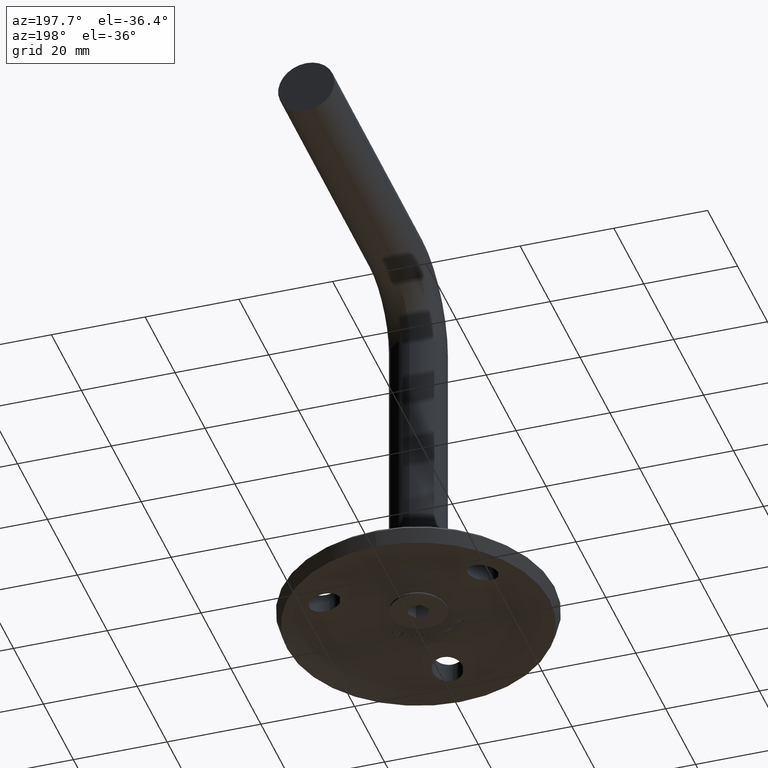
[diagram: clean part render]
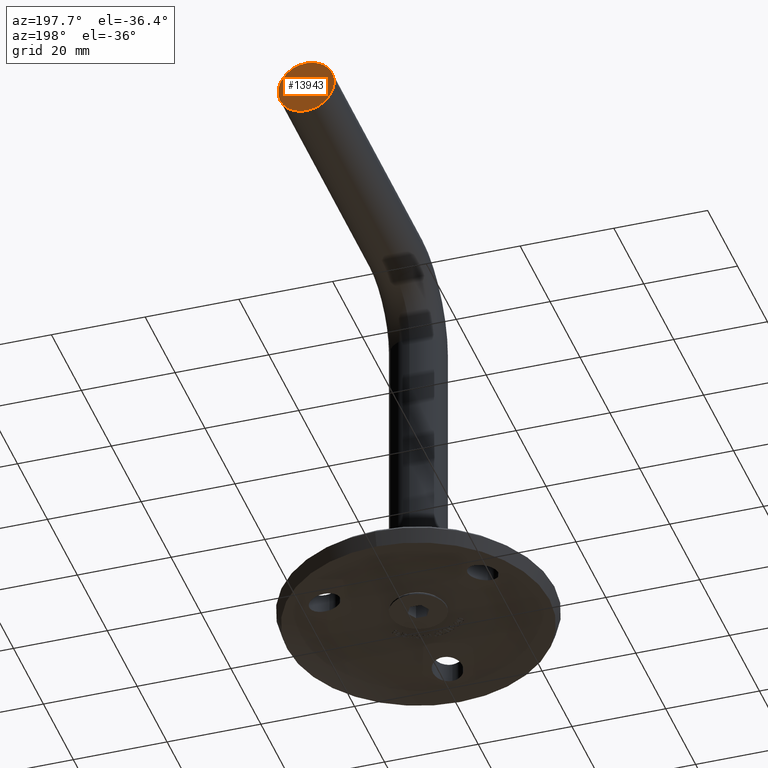
[diagram: same view with one face highlighted and labeled with its STEP entity id]
A machine part, auxiliary view. The second image highlights one B-rep face of the part: STEP entity #13943.
In plain terms, the highlighted planar face has unit normal (0, 1, -0).
Its self-contained STEP definition (entity closure, byte-faithful):
#157 = VERTEX_POINT ( 'NONE', #8092 ) ;
#854 = CIRCLE ( 'NONE', #11544, 6.000000000000000888 ) ;
#1738 = DIRECTION ( 'NONE',  ( 1.000000000000000000, 0.000000000000000000, 0.000000000000000000 ) ) ;
#1973 = EDGE_CURVE ( 'NONE', #4640, #157, #854, .T. ) ;
#4640 = VERTEX_POINT ( 'NONE', #10962 ) ;
#5205 = CARTESIAN_POINT ( 'NONE',  ( 0.000000000000000000, 74.99999999999995737, 75.00000000000001421 ) ) ;
#6293 = ORIENTED_EDGE ( 'NONE', *, *, #1973, .T. ) ;
#6308 = CARTESIAN_POINT ( 'NONE',  ( 0.000000000000000000, 74.99999999999995737, 75.00000000000001421 ) ) ;
#7009 = ORIENTED_EDGE ( 'NONE', *, *, #14042, .T. ) ;
#7221 = DIRECTION ( 'NONE',  ( 1.000000000000000000, 0.000000000000000000, 0.000000000000000000 ) ) ;
#7888 = EDGE_LOOP ( 'NONE', ( #6293, #7009 ) ) ;
#8092 = CARTESIAN_POINT ( 'NONE',  ( 7.347880794884114806E-16, 74.99999999999995737, 69.00000000000000000 ) ) ;
#8157 = AXIS2_PLACEMENT_3D ( 'NONE', #9984, #8944, #12282 ) ;
#8375 = PLANE ( 'NONE',  #8695 ) ;
#8695 = AXIS2_PLACEMENT_3D ( 'NONE', #5205, #12924, #7221 ) ;
#8944 = DIRECTION ( 'NONE',  ( 0.000000000000000000, 1.000000000000000000, -1.228163569523915759E-16 ) ) ;
#9984 = CARTESIAN_POINT ( 'NONE',  ( 0.000000000000000000, 74.99999999999995737, 75.00000000000001421 ) ) ;
#10676 = DIRECTION ( 'NONE',  ( 0.000000000000000000, 1.000000000000000000, -1.228163569523915759E-16 ) ) ;
#10962 = CARTESIAN_POINT ( 'NONE',  ( 0.000000000000000000, 74.99999999999995737, 81.00000000000001421 ) ) ;
#11544 = AXIS2_PLACEMENT_3D ( 'NONE', #6308, #10676, #1738 ) ;
#12282 = DIRECTION ( 'NONE',  ( 1.000000000000000000, 0.000000000000000000, 0.000000000000000000 ) ) ;
#12632 = FACE_OUTER_BOUND ( 'NONE', #7888, .T. ) ;
#12924 = DIRECTION ( 'NONE',  ( 0.000000000000000000, 1.000000000000000000, -1.228163569523915759E-16 ) ) ;
#12983 = CIRCLE ( 'NONE', #8157, 6.000000000000000888 ) ;
#13943 = ADVANCED_FACE ( 'NONE', ( #12632 ), #8375, .T. ) ;
#14042 = EDGE_CURVE ( 'NONE', #157, #4640, #12983, .T. ) ;